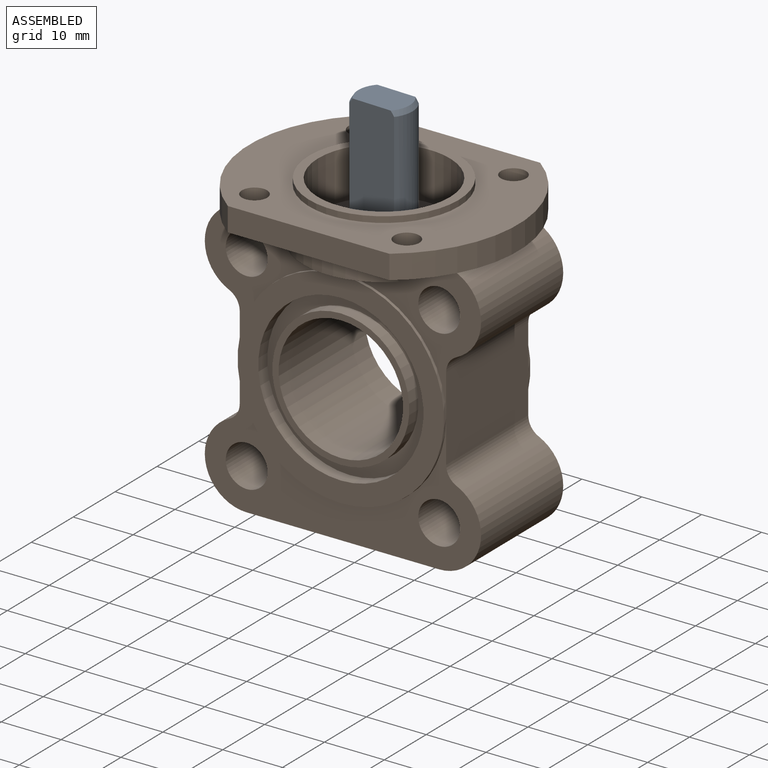
[diagram: assembled view]
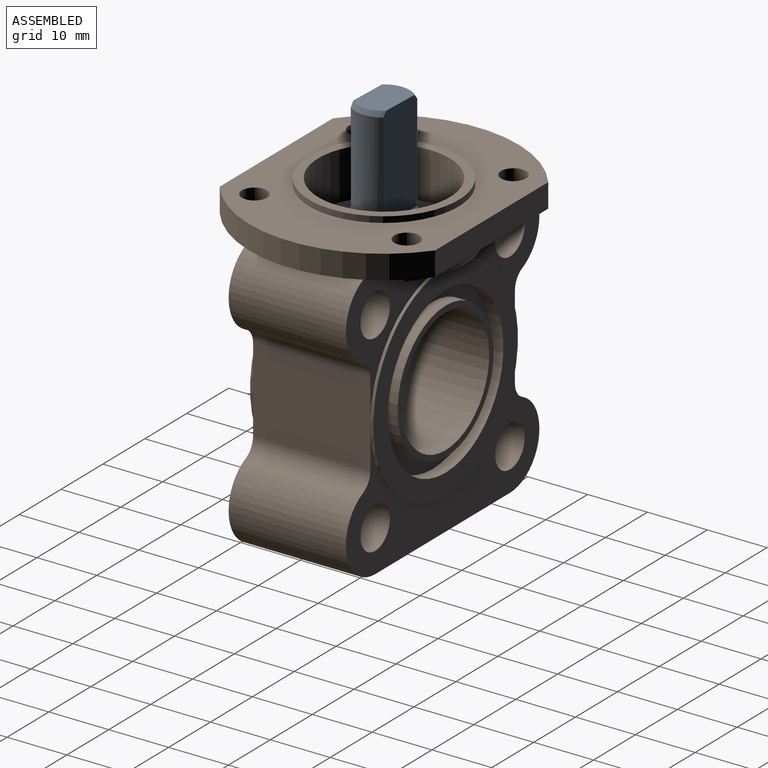
[diagram: assembled view, second angle]
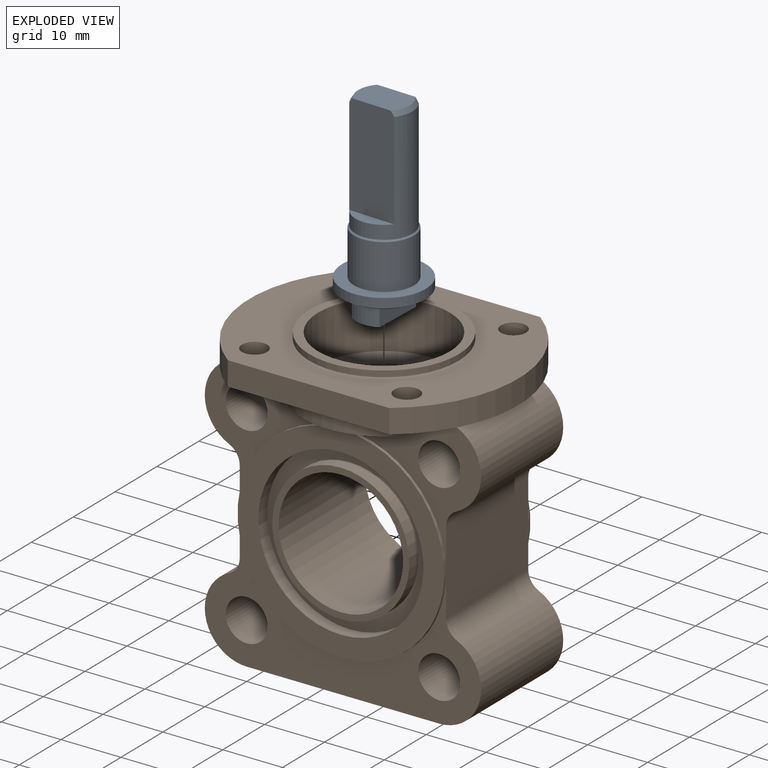
[diagram: exploded view]
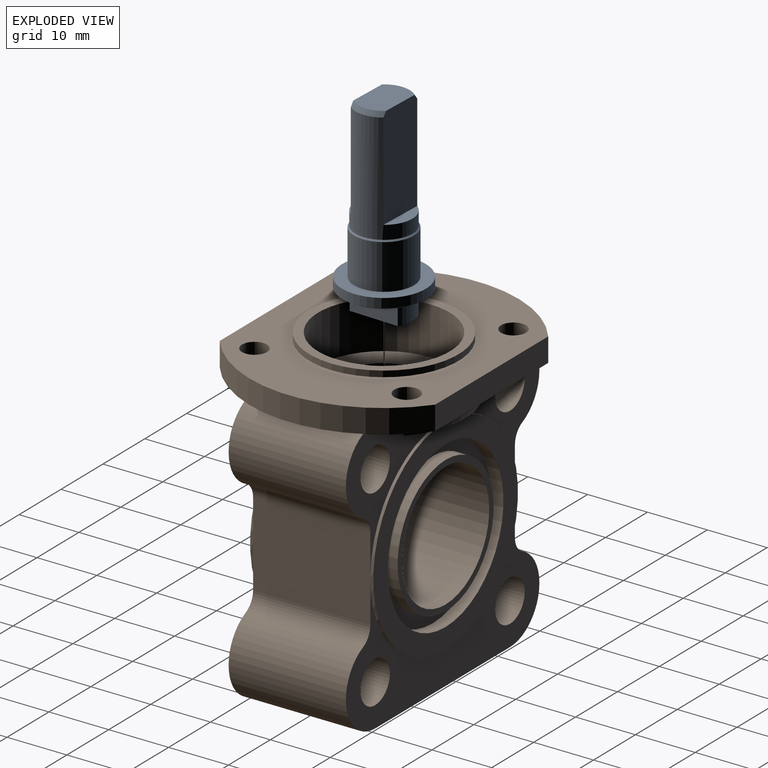
[diagram: exploded view, second angle]
ASSEMBLY  parts=2 mates=2
PART A: 19 faces, bbox 32.5x14x14 mm
  f0: cylinder r=4.75mm len=4.7mm, axis (-1,0,0), area 17.2mm2, adj f2,f12,f17,f18
  f1: cylinder r=4.75mm len=4.7mm, axis (-1,0,0), area 17.2mm2, adj f2,f12,f17,f18
  f2: plane 9.5x4.7mm, normal (-1,0,0), area 42.8mm2, adj f0,f1,f17,f18
  f3: plane 8.61x5.6mm, normal (1,0,0), area 44.5mm2, adj f5,f6,f13,f15
  f4: cylinder r=4.77mm len=18.47mm, axis (-1,0,0), area 261.8mm2, adj f5,f6,f7,f13,f14,f15,f16
  f5: cone r=4.77mm half-angle=30deg, axis (-1,0,0), area 5.6mm2, adj f3,f4,f13,f15
  f6: cone r=4.77mm half-angle=30deg, axis (-1,0,0), area 5.6mm2, adj f3,f4,f13,f15
  f7: cone r=5mm half-angle=45deg, axis (-1,0,0), area 10.2mm2, adj f4,f8
  f8: cylinder r=5mm len=10mm, axis (-1,0,0), area 235.6mm2, adj f7,f9
  f9: plane 14x14mm, normal (1,0,0), area 75.4mm2, adj f8,f10
  f10: cylinder r=7mm len=14mm, axis (-1,0,0), area 68.9mm2, adj f9,f11
  f11: cone r=6.25mm half-angle=60deg, axis (1,0,0), area 36mm2, adj f10,f12
  f12: plane 12.5x12.5mm, normal (-1,0,0), area 80mm2, adj f0,f1,f11,f17,f18
  f13: plane 17.02x7.73mm, normal (0,-1,0), area 130.6mm2, adj f3,f4,f5,f6,f14
  f14: plane 7.71x1.97mm, normal (1,0,0), area 10.6mm2, adj f4,f13
  f15: plane 17.02x7.73mm, normal (0,1,0), area 130.6mm2, adj f3,f4,f5,f6,f16
  f16: plane 7.71x1.97mm, normal (1,0,0), area 10.6mm2, adj f4,f15
  f17: plane 8.26x3.5mm, normal (0,0,-1), area 28.9mm2, adj f0,f1,f2,f12
  f18: plane 8.26x3.5mm, normal (0,0,1), area 28.9mm2, adj f0,f1,f2,f12
PART B: 55 faces, bbox 46.2x36x51.1 mm
  f0: plane 22.9x22.9mm, normal (0,1,0), area 72.1mm2, adj f15,f46
  f1: plane 22.9x22.9mm, normal (0,-1,0), area 72.1mm2, adj f15,f42
  f2: plane 34.5x34.5mm, normal (0,1,0), area 336.5mm2, adj f19,f44
  f3: plane 32.17x19.6mm, normal (0,0,-1), area 630.6mm2, adj f4,f12,f17,f20
  f4: cylinder r=7mm len=19.6mm, axis (0,1,0), area 372.1mm2, adj f3,f17,f20,f47
  f5: plane 19.6x14mm, normal (1,0,0), area 274.4mm2, adj f17,f18,f20,f21,f47,f48
  f6: cylinder r=7mm len=19.6mm, axis (0,1,0), area 350.5mm2, adj f18,f21,f26,f48
  f7: cylinder r=7mm len=19.6mm, axis (0,1,0), area 350.5mm2, adj f18,f21,f26,f49
  f8: plane 19.6x14mm, normal (-1,0,0), area 274.4mm2, adj f17,f18,f20,f21,f49,f50
  f9: cylinder r=3.5mm len=19.6mm, axis (0,1,0), area 431mm2, adj f18,f21
  f10: cylinder r=3.5mm len=19.6mm, axis (0,1,0), area 431mm2, adj f17,f20
  f11: cylinder r=3.5mm len=19.6mm, axis (0,1,0), area 431mm2, adj f17,f20
  f12: cylinder r=7mm len=19.6mm, axis (0,1,0), area 372.1mm2, adj f3,f17,f20,f50
  f13: cylinder r=3.5mm len=19.6mm, axis (0,1,0), area 431mm2, adj f18,f21
  f14: plane 34.5x34.5mm, normal (0,-1,0), area 336.5mm2, adj f16,f41
  f15: cylinder r=10.4mm len=20.8mm, axis (0,1,0), area 1171.3mm2, adj f0,f1,f40
  f16: cylinder r=17.25mm len=34.5mm, axis (0,-1,0), area 54.2mm2, adj f14,f17,f18
  f17: plane 46.17x23.1mm, normal (0,-1,0), area 375.6mm2, adj f3,f4,f5,f8,f10,f11,f12,f16
  f18: plane 46.17x23mm, normal (0,-1,0), area 288.7mm2, adj f5,f6,f7,f8,f9,f13,f16,f24
  f19: cylinder r=17.25mm len=34.5mm, axis (0,1,0), area 54.2mm2, adj f2,f20,f21
  f20: plane 46.17x23.1mm, normal (0,1,0), area 375.6mm2, adj f3,f4,f5,f8,f10,f11,f12,f19
  f21: plane 46.17x23mm, normal (0,1,0), area 288.7mm2, adj f5,f6,f7,f8,f9,f13,f19,f22
  f22: plane 18.57x3.7mm, normal (0,0,-1), area 47.2mm2, adj f21,f23
  f23: cylinder r=13.5mm len=18.57mm, axis (0,0,1), area 92.1mm2, adj f21,f22,f26
  f24: cylinder r=13.5mm len=18.57mm, axis (0,0,1), area 92.1mm2, adj f18,f25,f26
  f25: plane 18.57x3.7mm, normal (0,0,-1), area 47.2mm2, adj f18,f24
  f26: plane 45x36mm, normal (0,0,-1), area 601.4mm2, adj f6,f7,f18,f21,f23,f24,f27,f28
  f27: plane 27x4mm, normal (0,-1,0), area 108mm2, adj f26,f28,f30,f31
  f28: cylinder r=22.5mm len=36mm, axis (0,0,-1), area 166.9mm2, adj f26,f27,f29,f31
  f29: plane 27x4mm, normal (0,1,0), area 108mm2, adj f26,f28,f30,f31
  f30: cylinder r=22.5mm len=36mm, axis (0,0,-1), area 166.9mm2, adj f26,f27,f29,f31
  f31: plane 45x36mm, normal (0,0,1), area 878.6mm2, adj f27,f28,f29,f30,f32,f51,f52,f53
  f32: cylinder r=12.5mm len=25mm, axis (0,0,-1), area 78.5mm2, adj f31,f33
  f33: plane 25x25mm, normal (0,0,1), area 110.7mm2, adj f32,f34
  f34: cylinder r=11mm len=22mm, axis (0,0,1), area 552.9mm2, adj f33,f35
  f35: plane 22x22mm, normal (0,0,1), area 221.8mm2, adj f34,f36
  f36: cylinder r=7.1mm len=14.2mm, axis (0,0,1), area 178.4mm2, adj f35,f37
  f37: plane 14.2x14.2mm, normal (0,0,1), area 76.7mm2, adj f36,f38
  f38: cylinder r=5.1mm len=10.2mm, axis (0,0,1), area 48.1mm2, adj f37,f39
  f39: plane 14.4x14.4mm, normal (0,0,-1), area 81.1mm2, adj f38,f40
  f40: cylinder r=7.2mm len=14.4mm, axis (0,0,1), area 248.3mm2, adj f15,f39
  f41: cylinder r=13.8mm len=27.6mm, axis (0,-1,0), area 186.4mm2, adj f14,f43
  f42: cylinder r=11.45mm len=22.9mm, axis (0,-1,0), area 154.7mm2, adj f1,f43
  f43: plane 27.6x27.6mm, normal (0,-1,0), area 186.4mm2, adj f41,f42
  f44: cylinder r=13.8mm len=27.6mm, axis (0,-1,0), area 186.4mm2, adj f2,f45
  f45: plane 27.6x27.6mm, normal (0,1,0), area 186.4mm2, adj f44,f46
  f46: cylinder r=11.45mm len=22.9mm, axis (0,-1,0), area 154.7mm2, adj f0,f45
  f47: cylinder r=3mm len=19.6mm, axis (0,1,0), area 67.1mm2, adj f4,f5,f17,f20
  f48: cylinder r=3mm len=19.6mm, axis (0,1,0), area 67.1mm2, adj f5,f6,f18,f21
  f49: cylinder r=3mm len=19.6mm, axis (0,1,0), area 67.1mm2, adj f7,f8,f18,f21
  f50: cylinder r=3mm len=19.6mm, axis (0,1,0), area 67.1mm2, adj f8,f12,f17,f20
  f51: cylinder r=2.1mm len=4.2mm, axis (0,0,1), area 52.8mm2, adj f26,f31
  f52: cylinder r=2.1mm len=4.2mm, axis (0,0,1), area 52.8mm2, adj f26,f31
  f53: cylinder r=2.1mm len=4.2mm, axis (0,0,1), area 52.8mm2, adj f26,f31
  f54: cylinder r=2.1mm len=4.2mm, axis (0,0,1), area 52.8mm2, adj f26,f31
PLACE A rot(axis=(-0.02,-1,-0.02),90deg) t=(-5.07,1.45,16.66)mm
PLACE B rot(axis=(0,0,1),180deg) t=(-5.07,1.45,9.06)mm fixed
MATE cylindrical B.f34 <-> A.f0  axis (0,0,1) through (-5.07,1.45,24.31)mm
MATE planar A.f0 <-> B.f34  axis (0,0,1) through (-5.07,1.45,22.16)mm
